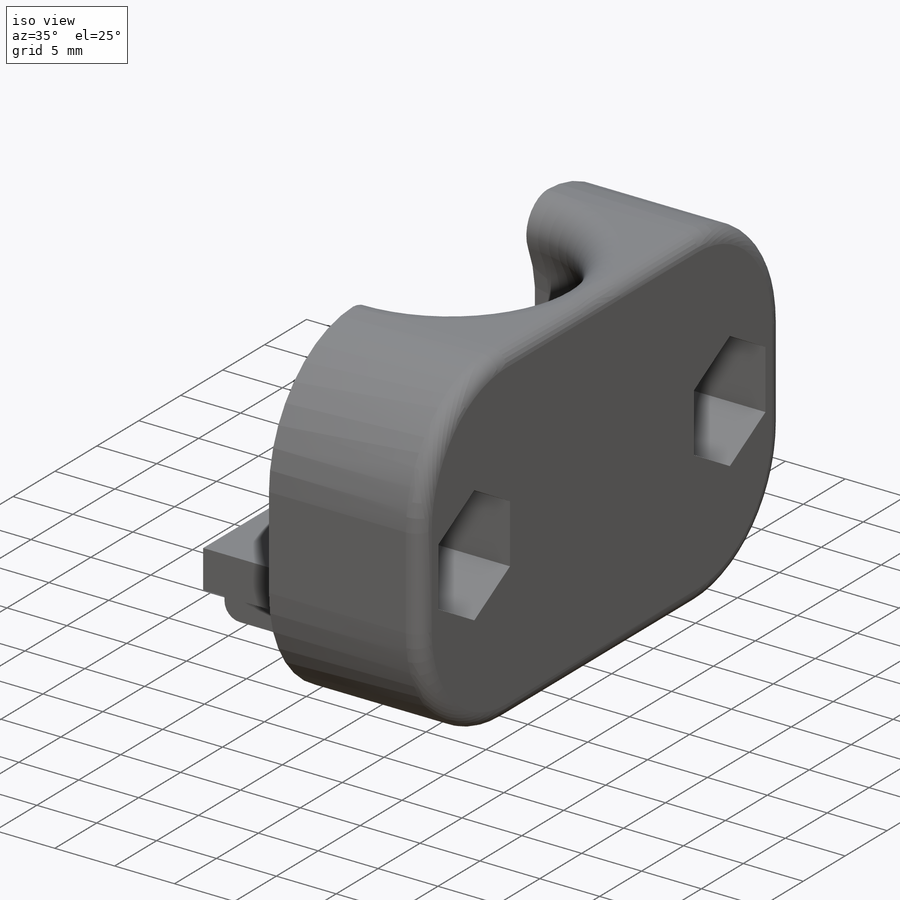
[diagram: iso view]
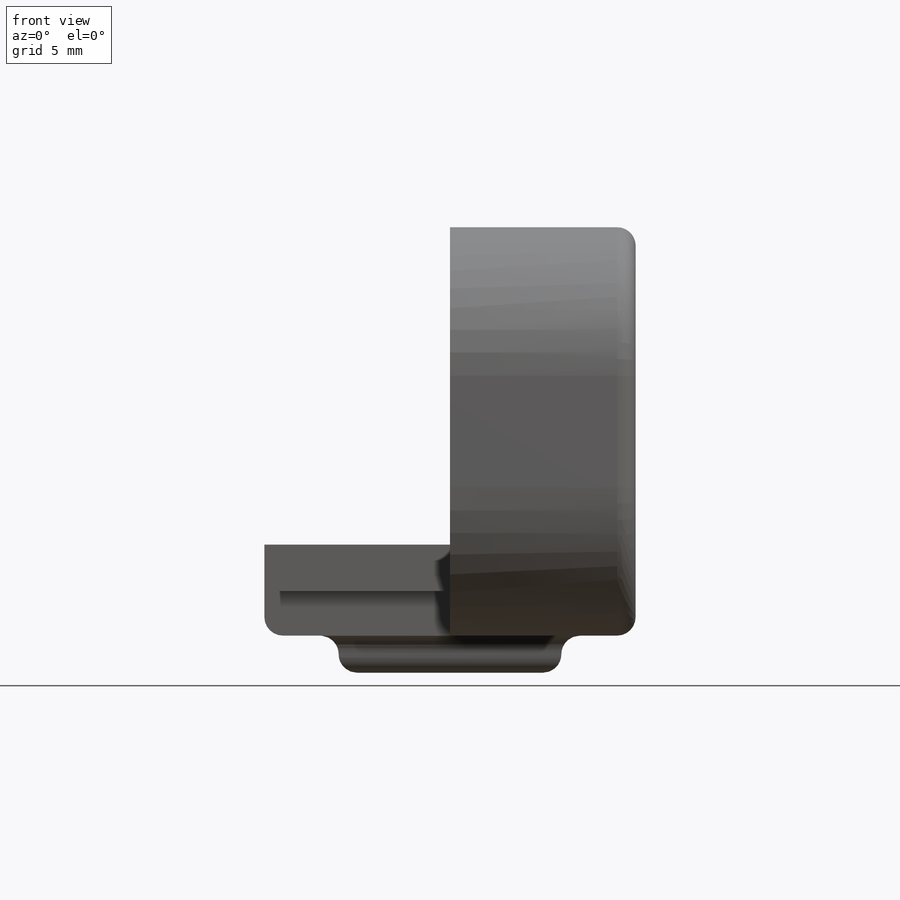
[diagram: front view]
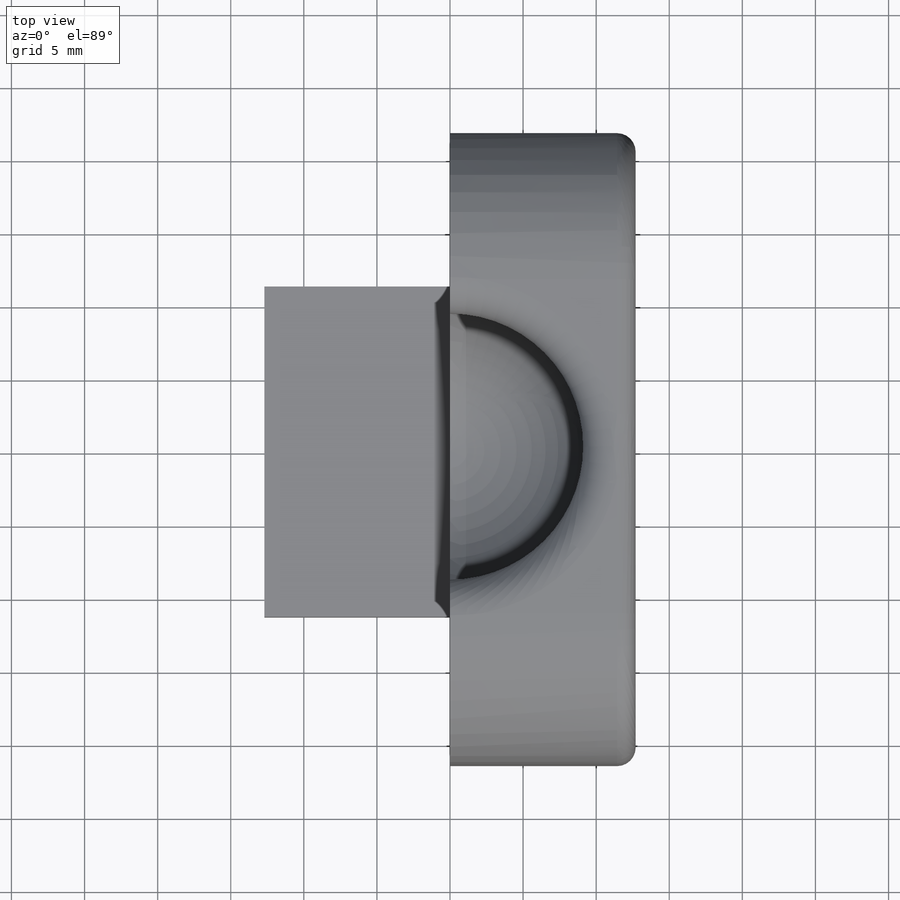
[diagram: top view]
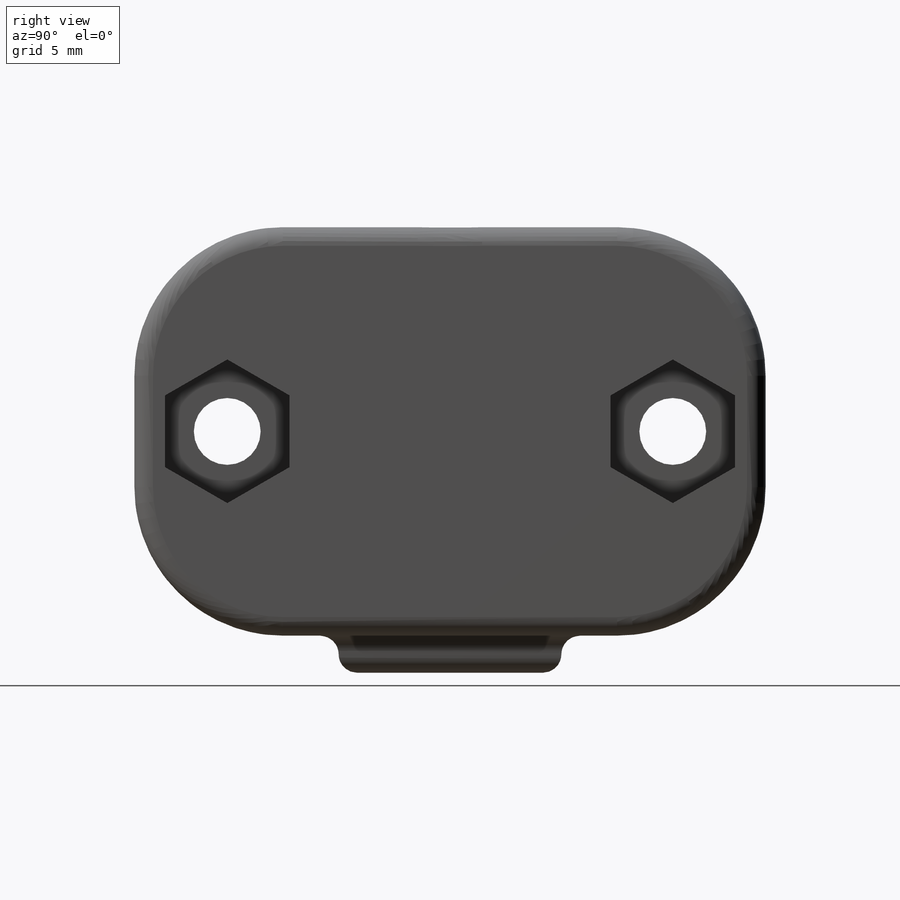
[diagram: right view]
SOLIDWORKS PART (.sldprt)
format: sldprt  version: not decoded by parser v0  size: 407,040 bytes
history: native  units: mm
features: sketch x9, cut_extrude x5, fillet x4, extrude x3, material x1, revolve x1, boolean_combine x1 (+18 scaffold rows collapsed; 2 parser-record rows omitted)
feature tree (44):
  scaffold x18  (default folders/planes/origin — collapsed)
  material  "Material <not specified>"
  sketch  "Sketch1"  dims[D1=7.62mm D2=20.32mm D3=21.59mm D4=21.59mm]
  extrude  "main body extrusion"  Depth=12.7mm
  parser-record x2  (decoder bookkeeping rows leaked as tree rows — omitted from the tree; the rows remain in map.json)
  sketch  "Sketch2"  dims[D1=10.16mm]
  revolve  "sphere"  Angle=360deg
  boolean_combine  "Combine1"
  fillet  "neck exit"  Radius=2.54mm
  sketch  "Sketch3"  dims[D1=4.572mm D2=4.572mm D3=6.35mm D4=6.35mm]
  cut_extrude  "screw throughholes"  [1 undecoded]
  fillet  "round corners"  Radius=10.16mm
  sketch  "Sketch4"  dims[D1=6.223mm D2=0.127mm D3=0.127mm]
  extrude  "top lip extrude"  Depth=12.7mm
  sketch  "Sketch5"  dims[D1=8.509mm D2=~4.570676mm]
  cut_extrude  "hex nut inset"  Depth=6.35mm
  fillet  "Fillet1"  Radius=1.27mm
  sketch  "Sketch6"  dims[D1=3.048mm D2=3.048mm D3=1.27mm D4=1.27mm D5=2.54mm D6=2.54mm]
  cut_extrude  "Cut-Extrude2"  Depth=12.7mm
  sketch  "Sketch7"  dims[D1=15.24mm D2=15.24mm]
  extrude  "Boss-Extrude1"  Depth=2.54mm
  sketch  "Sketch8"  dims[D1=10.922mm]
  cut_extrude  "Cut-Extrude3"  Depth=5.588mm
  sketch  "Sketch9"  dims[D1=6.858mm]
  cut_extrude  "Cut-Extrude4"  Depth=2.032mm
  fillet  "Fillet2"  Radius=1.27mm
decode coverage: 21 of 23 modeling features carry decoded parameters
note: ~ marks probable driven/reference dimensions
note: 1 parameter value undecoded
note: suppression state not decoded; provenance and decode notes live in map.json
